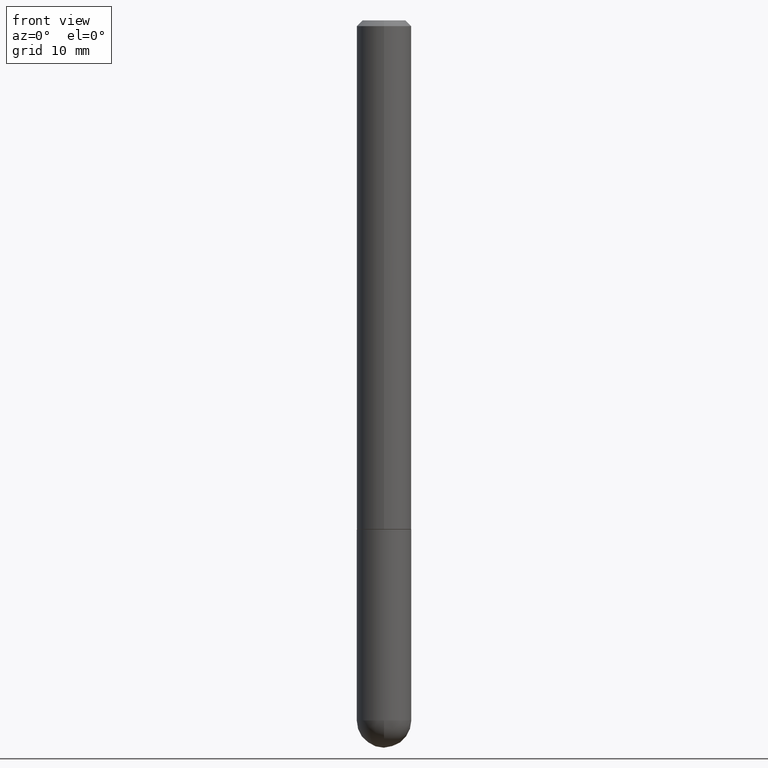
[diagram: clean part render]
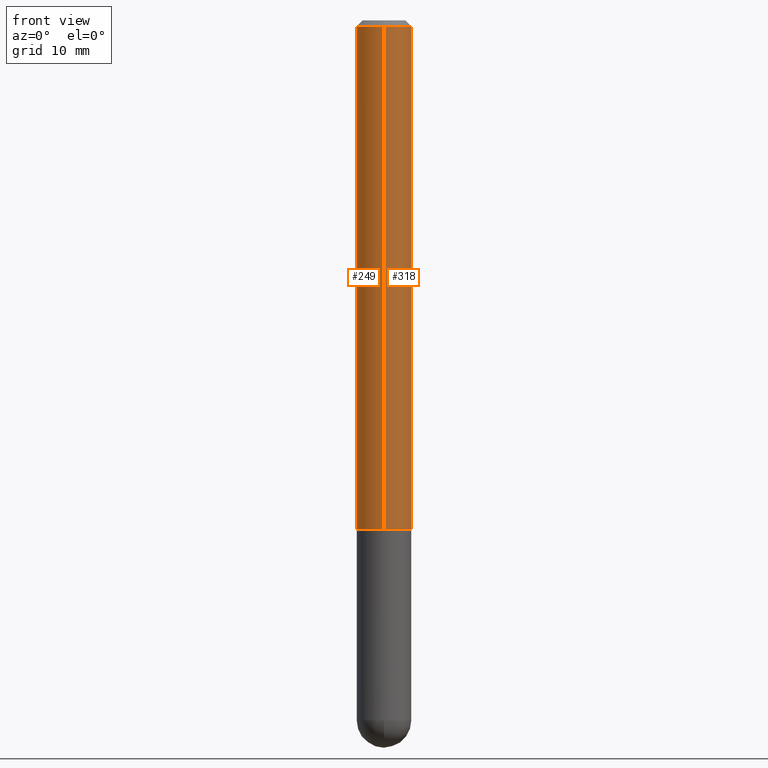
[diagram: same view with one multi-face feature highlighted, each face labeled with its STEP entity id]
A machine part, front view. The highlighted faces form ONE feature: a constant-radius fillet chain: 2 tangent blend faces with common blend radius 2.3813 mm. The faces share edges in the B-rep.
Their STEP definitions:
[1] entity #318 (Cylinder):
#4 = CYLINDRICAL_SURFACE ( 'NONE', #395, 0.09375000000000006939 ) ;
#45 = AXIS2_PLACEMENT_3D ( 'NONE', #370, #177, #346 ) ;
#65 = CARTESIAN_POINT ( 'NONE',  ( 4.255486751277835157E-29, -6.137587982345631334E-15, -1.749000000000000110 ) ) ;
#66 = VECTOR ( 'NONE', #285, 39.37007874015748143 ) ;
#73 = DIRECTION ( 'NONE',  ( -2.433097056190871382E-29, 3.509198388991212762E-15, 1.000000000000000000 ) ) ;
#84 = EDGE_CURVE ( 'NONE', #254, #283, #161, .T. ) ;
#92 = VECTOR ( 'NONE', #73, 39.37007874015748143 ) ;
#95 = CARTESIAN_POINT ( 'NONE',  ( -6.546527510330464833E-16, -0.09375000000000635603, -1.748999999999999888 ) ) ;
#97 = ORIENTED_EDGE ( 'NONE', *, *, #84, .T. ) ;
#131 = CARTESIAN_POINT ( 'NONE',  ( -6.431716872910799993E-16, -0.09374999999999998612, -0.01999999999999974368 ) ) ;
#161 = CIRCLE ( 'NONE', #211, 0.09375000000000023592 ) ;
#165 = EDGE_LOOP ( 'NONE', ( #97, #194, #385, #319 ) ) ;
#175 = LINE ( 'NONE', #298, #66 ) ;
#177 = DIRECTION ( 'NONE',  ( -2.433097056190871662E-29, 3.509198388991212762E-15, 1.000000000000000000 ) ) ;
#194 = ORIENTED_EDGE ( 'NONE', *, *, #302, .T. ) ;
#211 = AXIS2_PLACEMENT_3D ( 'NONE', #65, #348, #234 ) ;
#212 = CIRCLE ( 'NONE', #45, 0.09374999999999991673 ) ;
#218 = FACE_OUTER_BOUND ( 'NONE', #165, .T. ) ;
#219 = LINE ( 'NONE', #355, #92 ) ;
#226 = CARTESIAN_POINT ( 'NONE',  ( 6.661338147751165054E-16, 0.09374999999999410194, -1.749000000000000332 ) ) ;
#234 = DIRECTION ( 'NONE',  ( -6.982962677686265922E-15, -1.000000000000000000, 2.913971193241873272E-15 ) ) ;
#254 = VERTEX_POINT ( 'NONE', #95 ) ;
#257 = EDGE_CURVE ( 'NONE', #254, #324, #219, .T. ) ;
#276 = DIRECTION ( 'NONE',  ( -2.433097056190871662E-29, 3.509198388991212762E-15, 1.000000000000000000 ) ) ;
#283 = VERTEX_POINT ( 'NONE', #226 ) ;
#285 = DIRECTION ( 'NONE',  ( -2.433097056190871382E-29, 3.509198388991212762E-15, 1.000000000000000000 ) ) ;
#298 = CARTESIAN_POINT ( 'NONE',  ( 6.661338147750943187E-16, 0.09375000000000006939, -3.289873489679264552E-16 ) ) ;
#302 = EDGE_CURVE ( 'NONE', #283, #322, #175, .T. ) ;
#309 = CARTESIAN_POINT ( 'NONE',  ( 0.000000000000000000, 0.000000000000000000, 0.000000000000000000 ) ) ;
#318 = ADVANCED_FACE ( 'NONE', ( #218 ), #4, .T. ) ;
#319 = ORIENTED_EDGE ( 'NONE', *, *, #257, .F. ) ;
#322 = VERTEX_POINT ( 'NONE', #411 ) ;
#324 = VERTEX_POINT ( 'NONE', #131 ) ;
#346 = DIRECTION ( 'NONE',  ( -6.982962677686266711E-15, -1.000000000000000000, 3.505871591869140854E-15 ) ) ;
#348 = DIRECTION ( 'NONE',  ( -2.433097056190871662E-29, 3.509198388991212762E-15, 1.000000000000000000 ) ) ;
#351 = DIRECTION ( 'NONE',  ( -6.982962677686266711E-15, -1.000000000000000000, 3.509198388991212762E-15 ) ) ;
#355 = CARTESIAN_POINT ( 'NONE',  ( -6.546527510330879972E-16, -0.09375000000000006939, 3.289873489679264552E-16 ) ) ;
#370 = CARTESIAN_POINT ( 'NONE',  ( 4.866194112381761121E-31, -7.018396777982450767E-17, -0.02000000000000007327 ) ) ;
#385 = ORIENTED_EDGE ( 'NONE', *, *, #407, .F. ) ;
#395 = AXIS2_PLACEMENT_3D ( 'NONE', #309, #276, #351 ) ;
#407 = EDGE_CURVE ( 'NONE', #324, #322, #212, .T. ) ;
#411 = CARTESIAN_POINT ( 'NONE',  ( 6.546527510330874055E-16, 0.09374999999999984734, -0.02000000000000040287 ) ) ;
[2] entity #249 (Cylinder):
#5 = FACE_OUTER_BOUND ( 'NONE', #317, .T. ) ;
#23 = DIRECTION ( 'NONE',  ( -2.433097056190871662E-29, 3.509198388991212762E-15, 1.000000000000000000 ) ) ;
#38 = DIRECTION ( 'NONE',  ( -2.433097056190871662E-29, 3.509198388991212762E-15, 1.000000000000000000 ) ) ;
#66 = VECTOR ( 'NONE', #285, 39.37007874015748143 ) ;
#72 = AXIS2_PLACEMENT_3D ( 'NONE', #349, #38, #164 ) ;
#73 = DIRECTION ( 'NONE',  ( -2.433097056190871382E-29, 3.509198388991212762E-15, 1.000000000000000000 ) ) ;
#76 = EDGE_CURVE ( 'NONE', #283, #254, #393, .T. ) ;
#80 = ORIENTED_EDGE ( 'NONE', *, *, #257, .T. ) ;
#92 = VECTOR ( 'NONE', #73, 39.37007874015748143 ) ;
#95 = CARTESIAN_POINT ( 'NONE',  ( -6.546527510330464833E-16, -0.09375000000000635603, -1.748999999999999888 ) ) ;
#98 = AXIS2_PLACEMENT_3D ( 'NONE', #274, #270, #345 ) ;
#103 = ORIENTED_EDGE ( 'NONE', *, *, #302, .F. ) ;
#131 = CARTESIAN_POINT ( 'NONE',  ( -6.431716872910799993E-16, -0.09374999999999998612, -0.01999999999999974368 ) ) ;
#155 = CIRCLE ( 'NONE', #374, 0.09374999999999991673 ) ;
#164 = DIRECTION ( 'NONE',  ( -6.982962677686266711E-15, -1.000000000000000000, 3.509198388991212762E-15 ) ) ;
#175 = LINE ( 'NONE', #298, #66 ) ;
#214 = CYLINDRICAL_SURFACE ( 'NONE', #72, 0.09375000000000006939 ) ;
#219 = LINE ( 'NONE', #355, #92 ) ;
#222 = ORIENTED_EDGE ( 'NONE', *, *, #76, .T. ) ;
#226 = CARTESIAN_POINT ( 'NONE',  ( 6.661338147751165054E-16, 0.09374999999999410194, -1.749000000000000332 ) ) ;
#245 = CARTESIAN_POINT ( 'NONE',  ( 4.866194112381761121E-31, -7.018396777982450767E-17, -0.02000000000000007327 ) ) ;
#249 = ADVANCED_FACE ( 'NONE', ( #5 ), #214, .T. ) ;
#254 = VERTEX_POINT ( 'NONE', #95 ) ;
#257 = EDGE_CURVE ( 'NONE', #254, #324, #219, .T. ) ;
#270 = DIRECTION ( 'NONE',  ( -2.433097056190871662E-29, 3.509198388991212762E-15, 1.000000000000000000 ) ) ;
#274 = CARTESIAN_POINT ( 'NONE',  ( 4.255486751277835157E-29, -6.137587982345631334E-15, -1.749000000000000110 ) ) ;
#283 = VERTEX_POINT ( 'NONE', #226 ) ;
#285 = DIRECTION ( 'NONE',  ( -2.433097056190871382E-29, 3.509198388991212762E-15, 1.000000000000000000 ) ) ;
#298 = CARTESIAN_POINT ( 'NONE',  ( 6.661338147750943187E-16, 0.09375000000000006939, -3.289873489679264552E-16 ) ) ;
#302 = EDGE_CURVE ( 'NONE', #283, #322, #175, .T. ) ;
#317 = EDGE_LOOP ( 'NONE', ( #103, #222, #80, #366 ) ) ;
#322 = VERTEX_POINT ( 'NONE', #411 ) ;
#324 = VERTEX_POINT ( 'NONE', #131 ) ;
#345 = DIRECTION ( 'NONE',  ( -6.982962677686265922E-15, -1.000000000000000000, 2.913971193241873272E-15 ) ) ;
#349 = CARTESIAN_POINT ( 'NONE',  ( 0.000000000000000000, 0.000000000000000000, 0.000000000000000000 ) ) ;
#355 = CARTESIAN_POINT ( 'NONE',  ( -6.546527510330879972E-16, -0.09375000000000006939, 3.289873489679264552E-16 ) ) ;
#366 = ORIENTED_EDGE ( 'NONE', *, *, #399, .F. ) ;
#374 = AXIS2_PLACEMENT_3D ( 'NONE', #245, #23, #379 ) ;
#379 = DIRECTION ( 'NONE',  ( -6.982962677686266711E-15, -1.000000000000000000, 3.505871591869140854E-15 ) ) ;
#393 = CIRCLE ( 'NONE', #98, 0.09375000000000023592 ) ;
#399 = EDGE_CURVE ( 'NONE', #322, #324, #155, .T. ) ;
#411 = CARTESIAN_POINT ( 'NONE',  ( 6.546527510330874055E-16, 0.09374999999999984734, -0.02000000000000040287 ) ) ;